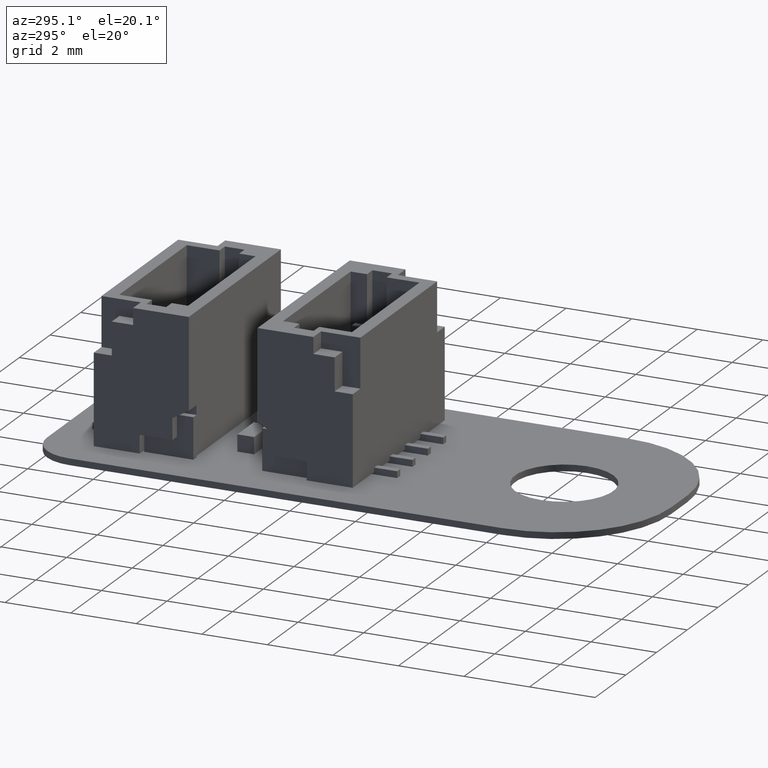
[diagram: clean part render]
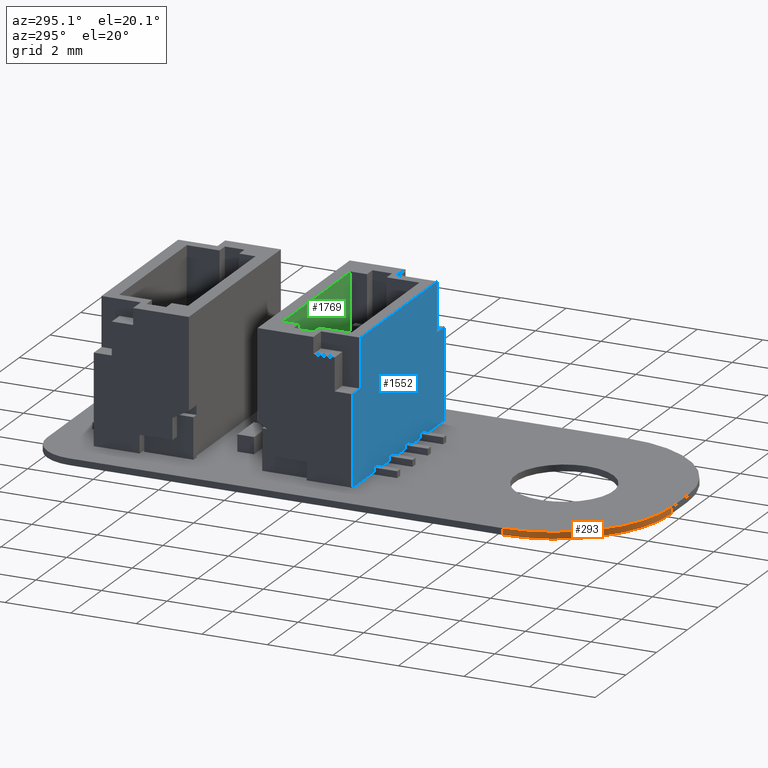
[diagram: same view with three faces highlighted in distinct colors, each labeled with its STEP entity id]
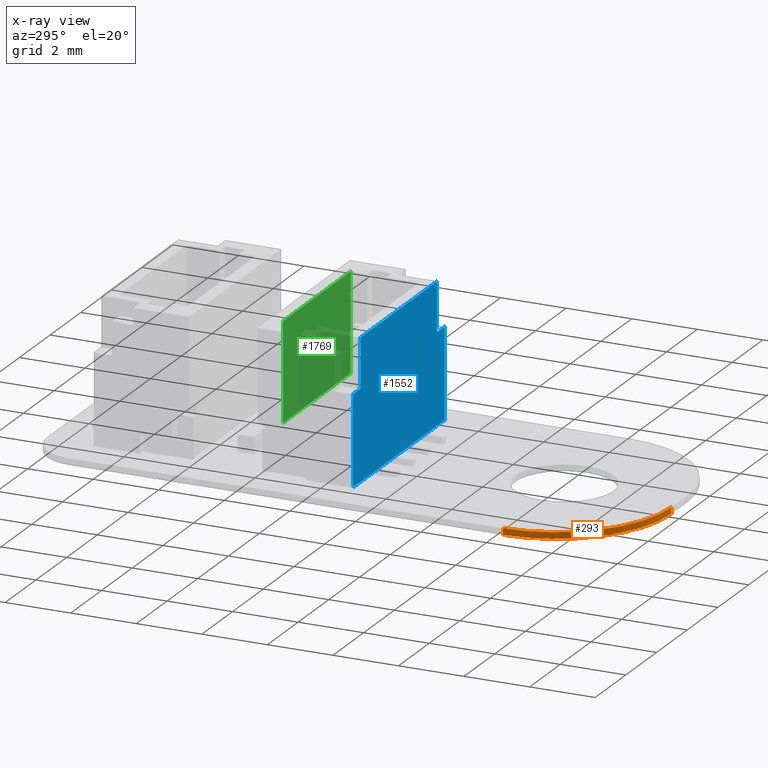
[diagram: x-ray of the same camera — body ghosted, the three highlighted faces saturated]
A machine part, auxiliary view with three faces highlighted in distinct colors.
The next image is the same camera in x-ray (body ghosted, the three faces saturated) — at least one of them is partly hidden behind the body in this view.
Their STEP definitions:

[orange] entity #293 — the highlighted cylindrical surface (partial cylindrical patch) has radius 3.4996 mm, axis along (0, 0, -1).
#65 = EDGE_CURVE('',#66,#68,#70,.T.);
#66 = VERTEX_POINT('',#67);
#67 = CARTESIAN_POINT('',(0.,3.5,0.));
#68 = VERTEX_POINT('',#69);
#69 = CARTESIAN_POINT('',(0.,3.5,0.1970024));
#70 = LINE('',#71,#72);
#71 = CARTESIAN_POINT('',(0.,3.5,0.));
#72 = VECTOR('',#73,1.);
#73 = DIRECTION('',(0.,0.,1.));
#268 = VERTEX_POINT('',#269);
#269 = CARTESIAN_POINT('',(3.5,0.,0.1970024));
#275 = EDGE_CURVE('',#276,#268,#278,.T.);
#276 = VERTEX_POINT('',#277);
#277 = CARTESIAN_POINT('',(3.5,0.,0.));
#278 = LINE('',#279,#280);
#279 = CARTESIAN_POINT('',(3.5,0.,0.));
#280 = VECTOR('',#281,1.);
#281 = DIRECTION('',(0.,0.,1.));
#293 = ADVANCED_FACE('',(#294),#312,.T.);
#294 = FACE_BOUND('',#295,.T.);
#295 = EDGE_LOOP('',(#296,#297,#304,#305));
#296 = ORIENTED_EDGE('',*,*,#275,.T.);
#297 = ORIENTED_EDGE('',*,*,#298,.T.);
#298 = EDGE_CURVE('',#268,#68,#299,.T.);
#299 = CIRCLE('',#300,3.499568992062);
#300 = AXIS2_PLACEMENT_3D('',#301,#302,#303);
#301 = CARTESIAN_POINT('',(3.499568965517,3.499568965517,0.1970024));
#302 = DIRECTION('',(0.,0.,-1.));
#303 = DIRECTION('',(1.231678768834E-04,-0.999999992415,0.));
#304 = ORIENTED_EDGE('',*,*,#65,.F.);
#305 = ORIENTED_EDGE('',*,*,#306,.F.);
#306 = EDGE_CURVE('',#276,#66,#307,.T.);
#307 = CIRCLE('',#308,3.499568992062);
#308 = AXIS2_PLACEMENT_3D('',#309,#310,#311);
#309 = CARTESIAN_POINT('',(3.499568965517,3.499568965517,0.));
#310 = DIRECTION('',(0.,0.,-1.));
#311 = DIRECTION('',(1.231678768834E-04,-0.999999992415,0.));
#312 = CYLINDRICAL_SURFACE('',#313,3.499568992062);
#313 = AXIS2_PLACEMENT_3D('',#314,#315,#316);
#314 = CARTESIAN_POINT('',(3.499568965517,3.499568965517,0.));
#315 = DIRECTION('',(0.,0.,-1.));
#316 = DIRECTION('',(1.231678768834E-04,-0.999999992415,0.));

[blue] entity #1552 — the highlighted planar face has unit normal (0, -1, -0).
#1043 = VERTEX_POINT('',#1044);
#1044 = CARTESIAN_POINT('',(-3.,7.347638122934E-16,2.2));
#1052 = EDGE_CURVE('',#1053,#1043,#1055,.T.);
#1053 = VERTEX_POINT('',#1054);
#1054 = CARTESIAN_POINT('',(-3.,2.75,2.2));
#1055 = LINE('',#1056,#1057);
#1056 = CARTESIAN_POINT('',(-3.,7.347638122934E-16,2.2));
#1057 = VECTOR('',#1058,1.);
#1058 = DIRECTION('',(-0.,-1.,-0.));
#1131 = VERTEX_POINT('',#1132);
#1132 = CARTESIAN_POINT('',(-2.5,4.25,2.2));
#1140 = EDGE_CURVE('',#1141,#1131,#1143,.T.);
#1141 = VERTEX_POINT('',#1142);
#1142 = CARTESIAN_POINT('',(2.5,4.25,2.2));
#1143 = LINE('',#1144,#1145);
#1144 = CARTESIAN_POINT('',(-3.,4.25,2.2));
#1145 = VECTOR('',#1146,1.);
#1146 = DIRECTION('',(-1.,1.445602896647E-16,-0.));
#1319 = VERTEX_POINT('',#1320);
#1320 = CARTESIAN_POINT('',(3.,2.75,2.2));
#1326 = EDGE_CURVE('',#1327,#1319,#1329,.T.);
#1327 = VERTEX_POINT('',#1328);
#1328 = CARTESIAN_POINT('',(3.,-1.255101931546E-16,2.2));
#1329 = LINE('',#1330,#1331);
#1330 = CARTESIAN_POINT('',(3.,0.,2.2));
#1331 = VECTOR('',#1332,1.);
#1332 = DIRECTION('',(2.040851148208E-16,1.,-1.425119565294E-30));
#1437 = EDGE_CURVE('',#1043,#1327,#1438,.T.);
#1438 = LINE('',#1439,#1440);
#1439 = CARTESIAN_POINT('',(3.,2.479901770802E-30,2.2));
#1440 = VECTOR('',#1441,1.);
#1441 = DIRECTION('',(1.,-1.224606353822E-16,-0.));
#1552 = ADVANCED_FACE('',(#1553),#1587,.T.);
#1553 = FACE_BOUND('',#1554,.T.);
#1554 = EDGE_LOOP('',(#1555,#1556,#1557,#1565,#1571,#1572,#1580,#1586));
#1555 = ORIENTED_EDGE('',*,*,#1437,.T.);
#1556 = ORIENTED_EDGE('',*,*,#1326,.T.);
#1557 = ORIENTED_EDGE('',*,*,#1558,.T.);
#1558 = EDGE_CURVE('',#1319,#1559,#1561,.T.);
#1559 = VERTEX_POINT('',#1560);
#1560 = CARTESIAN_POINT('',(2.5,2.75,2.2));
#1561 = LINE('',#1562,#1563);
#1562 = CARTESIAN_POINT('',(-3.,2.75,2.2));
#1563 = VECTOR('',#1564,1.);
#1564 = DIRECTION('',(-1.,-0.,6.982966722219E-15));
#1565 = ORIENTED_EDGE('',*,*,#1566,.T.);
#1566 = EDGE_CURVE('',#1559,#1141,#1567,.T.);
#1567 = LINE('',#1568,#1569);
#1568 = CARTESIAN_POINT('',(2.5,7.347638122934E-16,2.2));
#1569 = VECTOR('',#1570,1.);
#1570 = DIRECTION('',(0.,1.,0.));
#1571 = ORIENTED_EDGE('',*,*,#1140,.T.);
#1572 = ORIENTED_EDGE('',*,*,#1573,.T.);
#1573 = EDGE_CURVE('',#1131,#1574,#1576,.T.);
#1574 = VERTEX_POINT('',#1575);
#1575 = CARTESIAN_POINT('',(-2.5,2.75,2.2));
#1576 = LINE('',#1577,#1578);
#1577 = CARTESIAN_POINT('',(-2.5,7.347638122934E-16,2.2));
#1578 = VECTOR('',#1579,1.);
#1579 = DIRECTION('',(-0.,-1.,-0.));
#1580 = ORIENTED_EDGE('',*,*,#1581,.T.);
#1581 = EDGE_CURVE('',#1574,#1053,#1582,.T.);
#1582 = LINE('',#1583,#1584);
#1583 = CARTESIAN_POINT('',(-3.,2.75,2.2));
#1584 = VECTOR('',#1585,1.);
#1585 = DIRECTION('',(-1.,-0.,6.982966722219E-15));
#1586 = ORIENTED_EDGE('',*,*,#1052,.T.);
#1587 = PLANE('',#1588);
#1588 = AXIS2_PLACEMENT_3D('',#1589,#1590,#1591);
#1589 = CARTESIAN_POINT('',(-3.,7.347638122934E-16,2.2));
#1590 = DIRECTION('',(6.982966722219E-15,-0.,1.));
#1591 = DIRECTION('',(1.,0.,-6.982966722219E-15));

[green] entity #1769 — the highlighted planar face has unit normal (-0, 1, 0).
#1191 = VERTEX_POINT('',#1192);
#1192 = CARTESIAN_POINT('',(-2.2,4.25,-0.3));
#1198 = EDGE_CURVE('',#1199,#1191,#1201,.T.);
#1199 = VERTEX_POINT('',#1200);
#1200 = CARTESIAN_POINT('',(2.2,4.25,-0.3));
#1201 = LINE('',#1202,#1203);
#1202 = CARTESIAN_POINT('',(-3.,4.25,-0.3));
#1203 = VECTOR('',#1204,1.);
#1204 = DIRECTION('',(-1.,1.445602896647E-16,-0.));
#1769 = ADVANCED_FACE('',(#1770),#1795,.F.);
#1770 = FACE_BOUND('',#1771,.T.);
#1771 = EDGE_LOOP('',(#1772,#1780,#1788,#1794));
#1772 = ORIENTED_EDGE('',*,*,#1773,.F.);
#1773 = EDGE_CURVE('',#1774,#1191,#1776,.T.);
#1774 = VERTEX_POINT('',#1775);
#1775 = CARTESIAN_POINT('',(-2.2,1.25,-0.3));
#1776 = LINE('',#1777,#1778);
#1777 = CARTESIAN_POINT('',(-2.2,1.25,-0.3));
#1778 = VECTOR('',#1779,1.);
#1779 = DIRECTION('',(7.122395006502E-47,1.,1.005770567548E-32));
#1780 = ORIENTED_EDGE('',*,*,#1781,.F.);
#1781 = EDGE_CURVE('',#1782,#1774,#1784,.T.);
#1782 = VERTEX_POINT('',#1783);
#1783 = CARTESIAN_POINT('',(2.2,1.25,-0.3));
#1784 = LINE('',#1785,#1786);
#1785 = CARTESIAN_POINT('',(-2.2,1.25,-0.3));
#1786 = VECTOR('',#1787,1.);
#1787 = DIRECTION('',(-1.,0.,7.081530556081E-15));
#1788 = ORIENTED_EDGE('',*,*,#1789,.F.);
#1789 = EDGE_CURVE('',#1199,#1782,#1790,.T.);
#1790 = LINE('',#1791,#1792);
#1791 = CARTESIAN_POINT('',(2.2,1.25,-0.3));
#1792 = VECTOR('',#1793,1.);
#1793 = DIRECTION('',(-7.122395006502E-47,-1.,-1.005770567548E-32));
#1794 = ORIENTED_EDGE('',*,*,#1198,.T.);
#1795 = PLANE('',#1796);
#1796 = AXIS2_PLACEMENT_3D('',#1797,#1798,#1799);
#1797 = CARTESIAN_POINT('',(-2.2,1.25,-0.3));
#1798 = DIRECTION('',(-7.081530556081E-15,1.005770567548E-32,-1.));
#1799 = DIRECTION('',(-1.,0.,7.081530556081E-15));